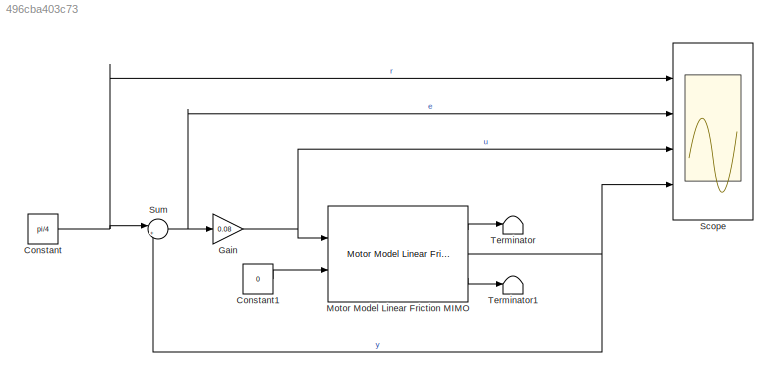
MODEL slx_496cba403c73
KIND model
CONFIG AbsTol = auto
CONFIG FixedStep = auto
CONFIG MaxStep = auto
CONFIG MinStep = auto
CONFIG RelTol = 1e-3
CONFIG SampleTimeConstraint = Unconstrained
CONFIG Solver = VariableStepAuto
CONFIG SolverMode = Auto
CONFIG SolverName = VariableStepAuto
CONFIG StartTime = 0.0
CONFIG StopTime = 1
BLOCK [Constant] Constant
  Value = pi/4
BLOCK [Constant] Constant1
  Value = 0
BLOCK [Gain] Gain
  Gain = 0.08
  OutDataTypeStr = Inherit: Inherit via internal rule
  ParamDataTypeStr = Inherit: Inherit via internal rule
  SaturateOnIntegerOverflow = off
BLOCK [Reference] Motor Model Linear Friction MIMO  REF=LocalLib/Motor Model
Linear Friction MIMO
  Ports = [2, 3]
  SourceBlock = LocalLib/Motor Model\nLinear Friction MIMO
  SourceType = SubSystem
BLOCK [Scope] Scope
  NumInputPorts = 4
  Ports = [4]
  ScopeSpecificationString = Simulink.scopes.TimeScopeBlockCfg('CurrentConfiguration', extmgr.ConfigurationSet(extmgr.Configuration('Core','General UI',true),extmgr.Configuration('Core','Source UI',true),extmgr.Configuration('Sources','WiredSimulink',true),extmgr.Configuration('Visuals','Time Domain',true,'SerializedDisplays',{struct('MinYLimReal','-0.30929','MaxYLimReal','1.09469','YLabelReal','','MinYLimMag','0.00000','MaxY...<+1387ch>
BLOCK [Sum] Sum
  IconShape = round
  InputSameDT = off
  Inputs = |+-
  OutDataTypeStr = Inherit: Inherit via internal rule
  Ports = [2, 1]
  SaturateOnIntegerOverflow = off
BLOCK [Terminator] Terminator
BLOCK [Terminator] Terminator1
LINE Constant1:1 -> Motor Model Linear Friction MIMO:2
NET Constant:1 -> Scope:1, Sum:1
NET Gain:1 -> Motor Model Linear Friction MIMO:1, Scope:3
LINE Motor Model Linear Friction MIMO:1 -> Terminator:1
NET Motor Model Linear Friction MIMO:2 -> Scope:4, Sum:2
LINE Motor Model Linear Friction MIMO:3 -> Terminator1:1
NET Sum:1 -> Gain:1, Scope:2
note: NET lines group one-source signal fan-out (src -> all destinations, sorted); 1:1 wires keep LINE
